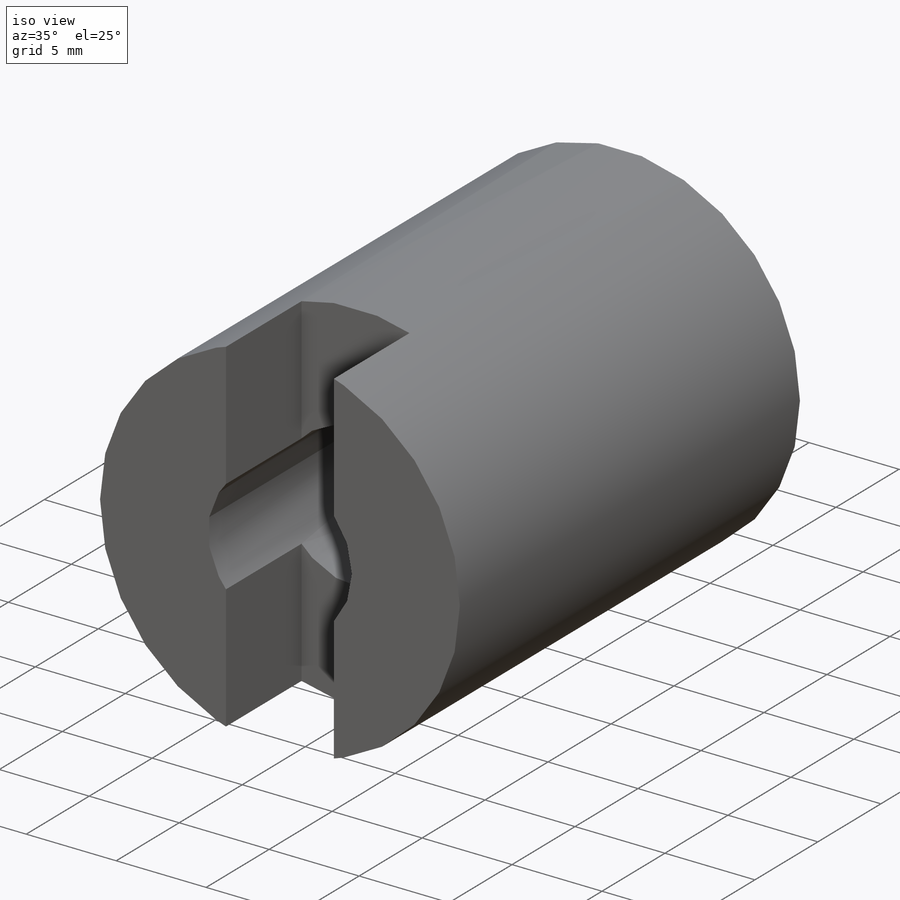
[diagram: iso view]
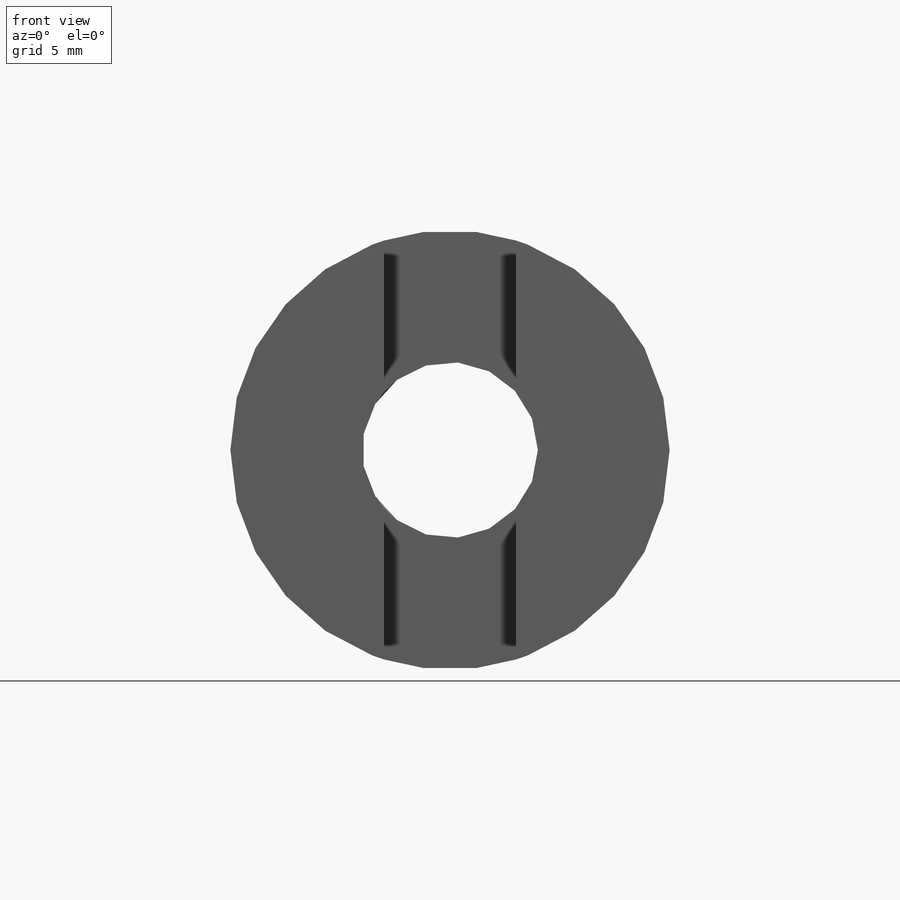
[diagram: front view]
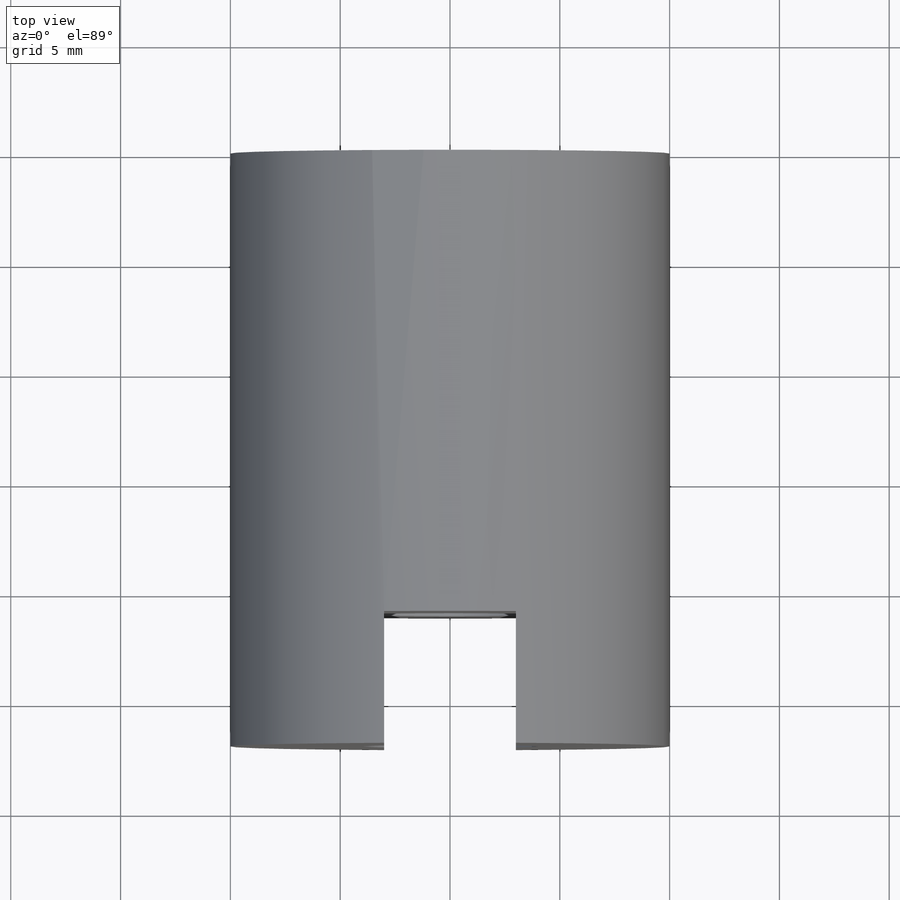
[diagram: top view]
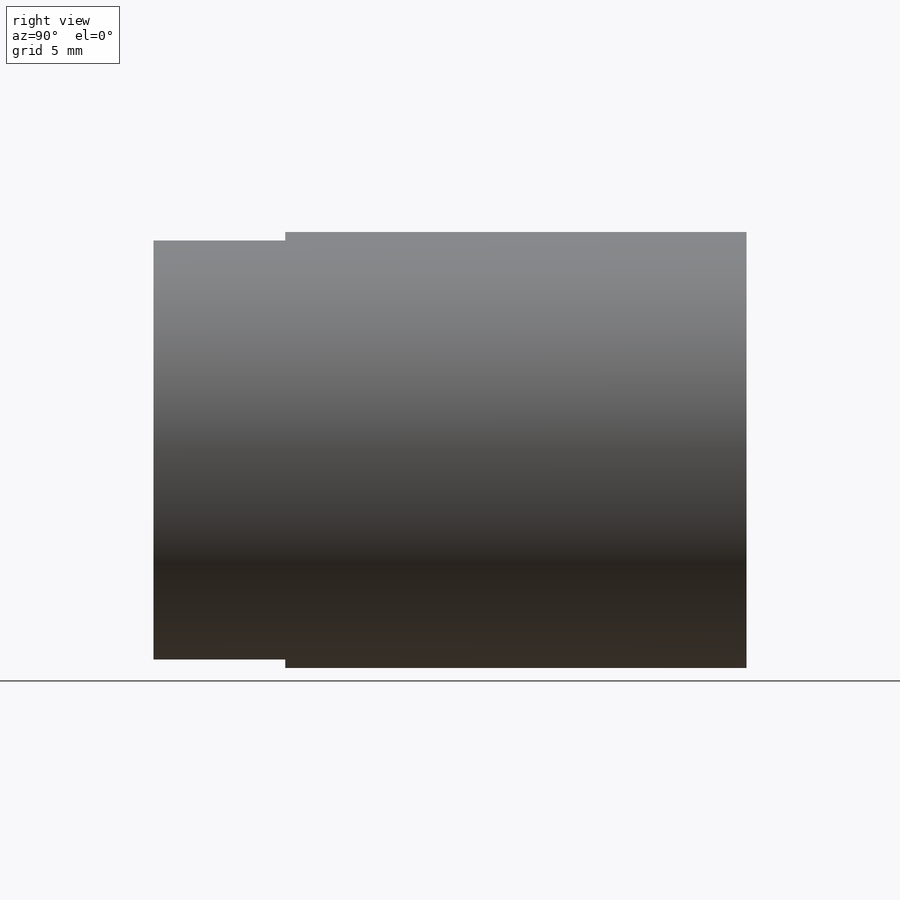
[diagram: right view]
SOLIDWORKS PART (.sldprt)
format: sldprt  version: not decoded by parser v0  size: 206,336 bytes
history: native  units: mm
features: sketch x5, cut_extrude x4, material x1, extrude x1 (+14 scaffold rows collapsed)
feature tree (25):
  scaffold x14  (default folders/planes/origin — collapsed)
  material  "201 Annealed Stainless Steel (SS)"
  sketch  "Sketch1"  dims[D1=20.0mm]
  extrude  "Boss-Extrude1"  Depth=27mm
  sketch  "Sketch2"  dims[D1=8.0mm]
  cut_extrude  "Cut-Extrude1"  Depth=140mm
  sketch  "Sketch3"  dims[D1=12.0mm]
  cut_extrude  "Cut-Extrude2"  Depth=15mm
  sketch  "Sketch4"  dims[D1=6.0mm D2=6.0mm]
  cut_extrude  "Cut-Extrude3"  Depth=30mm
  sketch  "Sketch5"  dims[D1=1.5mm D2=5.0mm D3=~3.579665mm]
  cut_extrude  "Cut-Extrude4"  [1 undecoded]
decode coverage: 9 of 10 modeling features carry decoded parameters
note: ~ marks probable driven/reference dimensions
note: 1 parameter value undecoded
note: suppression state not decoded; provenance and decode notes live in map.json
